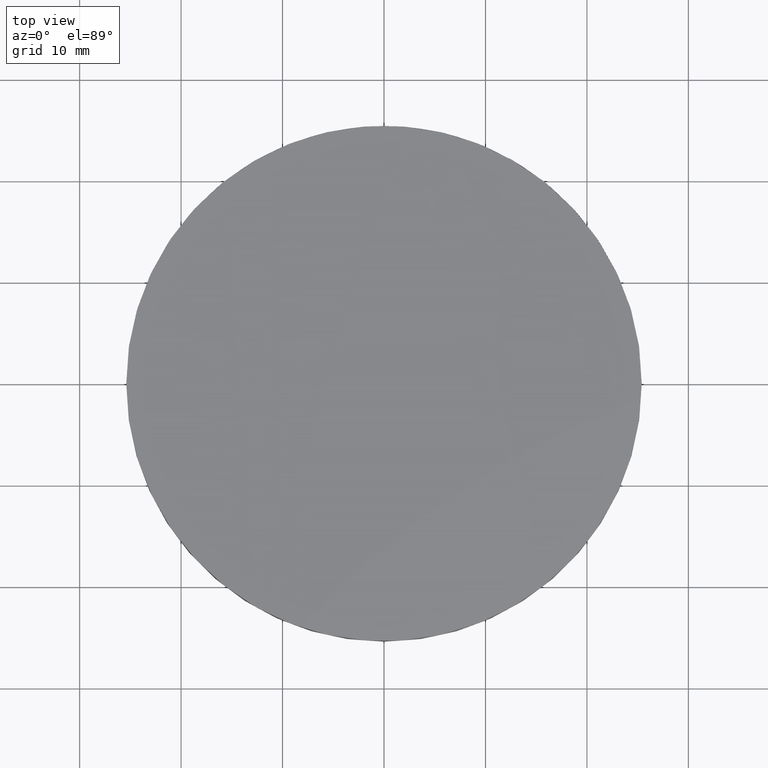
[diagram: clean part render]
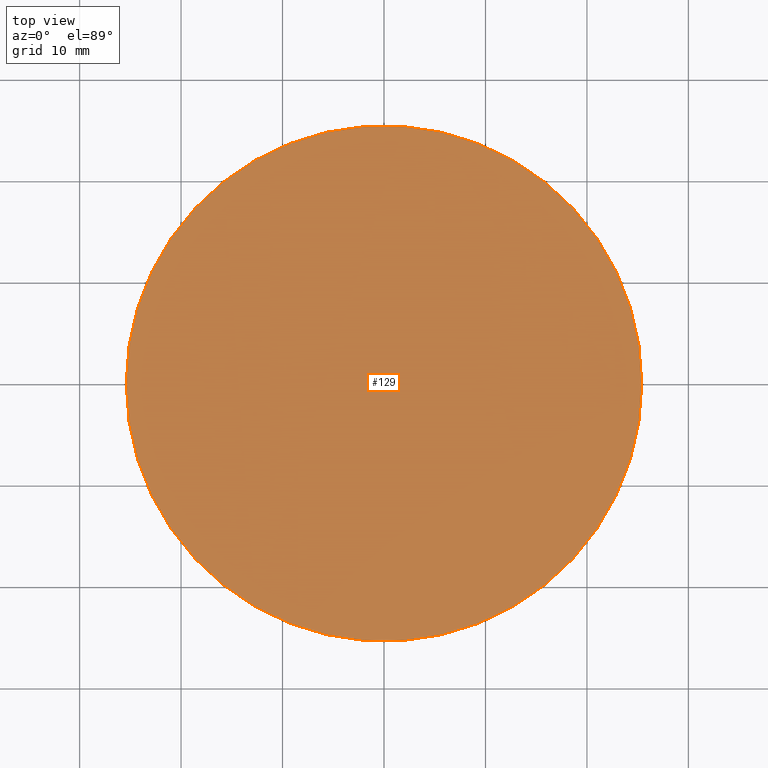
[diagram: same view with one face highlighted and labeled with its STEP entity id]
A machine part, top view. The second image highlights one B-rep face of the part: STEP entity #129.
In plain terms, the highlighted planar face has unit normal (0, 0, 1).
Its self-contained STEP definition (entity closure, byte-faithful):
#10 = CARTESIAN_POINT ( 'NONE',  ( -25.39999999999999900, 7.995584178184967200E-015, 6.000000000000000000 ) ) ;
#23 = AXIS2_PLACEMENT_3D ( 'NONE', #153, #192, #90 ) ;
#31 = FACE_OUTER_BOUND ( 'NONE', #223, .T. ) ;
#35 = CARTESIAN_POINT ( 'NONE',  ( 0.0000000000000000000, 52.02000000000000300, 6.000000000000000000 ) ) ;
#47 = ORIENTED_EDGE ( 'NONE', *, *, #234, .F. ) ;
#58 = ORIENTED_EDGE ( 'NONE', *, *, #123, .F. ) ;
#59 = DIRECTION ( 'NONE',  ( 1.000000000000000000, 0.0000000000000000000, 0.0000000000000000000 ) ) ;
#64 = CIRCLE ( 'NONE', #197, 25.39999999999999900 ) ;
#70 = PLANE ( 'NONE',  #222 ) ;
#88 = DIRECTION ( 'NONE',  ( 1.000000000000000000, 0.0000000000000000000, -0.0000000000000000000 ) ) ;
#90 = DIRECTION ( 'NONE',  ( 1.000000000000000000, 0.0000000000000000000, 0.0000000000000000000 ) ) ;
#100 = CARTESIAN_POINT ( 'NONE',  ( 9.992007221626412800E-016, 4.884981308350691100E-015, 6.000000000000000000 ) ) ;
#109 = VERTEX_POINT ( 'NONE', #10 ) ;
#123 = EDGE_CURVE ( 'NONE', #109, #199, #64, .T. ) ;
#129 = ADVANCED_FACE ( 'NONE', ( #31 ), #70, .T. ) ;
#153 = CARTESIAN_POINT ( 'NONE',  ( 9.992007221626412800E-016, 4.884981308350691100E-015, 6.000000000000000000 ) ) ;
#156 = CIRCLE ( 'NONE', #23, 25.39999999999999900 ) ;
#164 = DIRECTION ( 'NONE',  ( -0.0000000000000000000, -0.0000000000000000000, -1.000000000000000000 ) ) ;
#188 = CARTESIAN_POINT ( 'NONE',  ( 25.39999999999999900, 4.884981308350691100E-015, 6.000000000000000000 ) ) ;
#192 = DIRECTION ( 'NONE',  ( -0.0000000000000000000, -0.0000000000000000000, -1.000000000000000000 ) ) ;
#197 = AXIS2_PLACEMENT_3D ( 'NONE', #100, #164, #59 ) ;
#199 = VERTEX_POINT ( 'NONE', #188 ) ;
#222 = AXIS2_PLACEMENT_3D ( 'NONE', #35, #228, #88 ) ;
#223 = EDGE_LOOP ( 'NONE', ( #47, #58 ) ) ;
#228 = DIRECTION ( 'NONE',  ( 0.0000000000000000000, 0.0000000000000000000, 1.000000000000000000 ) ) ;
#234 = EDGE_CURVE ( 'NONE', #199, #109, #156, .T. ) ;